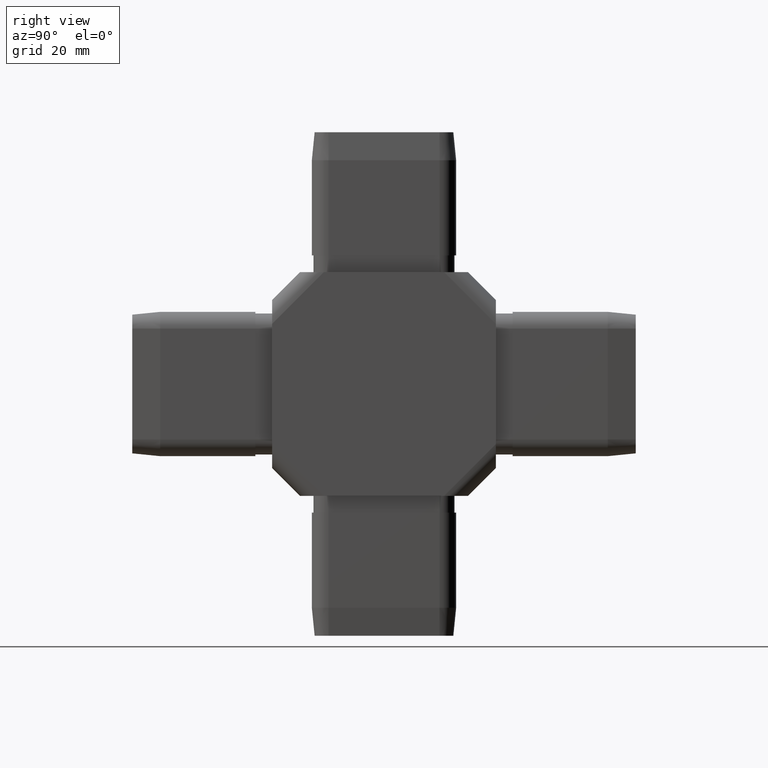
[diagram: clean part render]
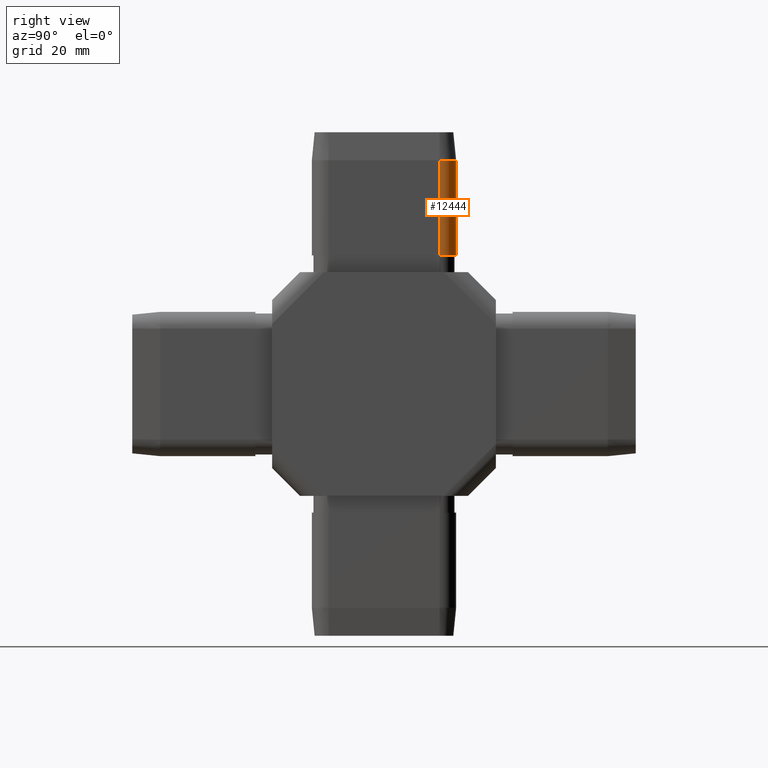
[diagram: same view with one face highlighted and labeled with its STEP entity id]
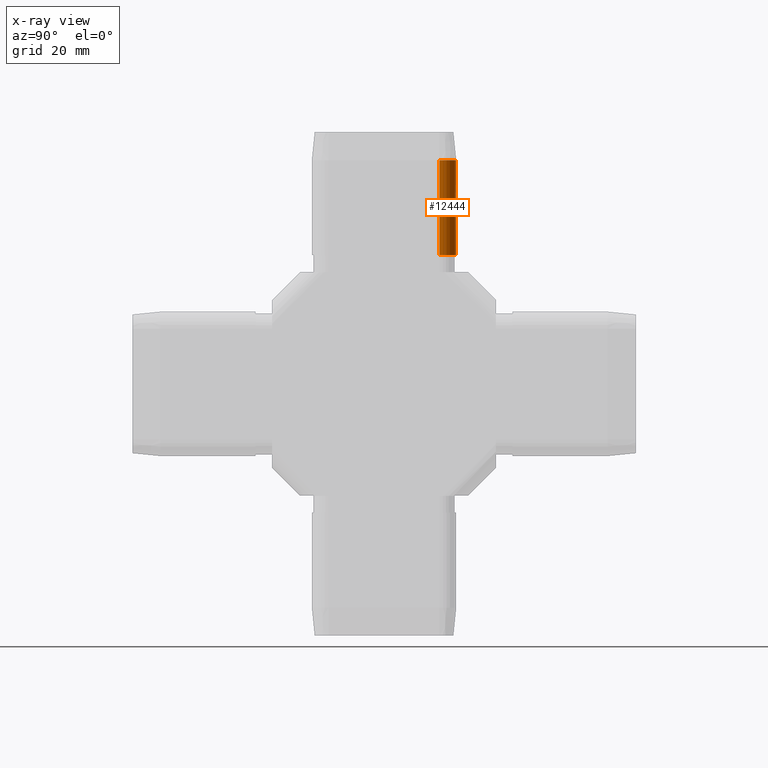
[diagram: x-ray of the same camera — body ghosted, the highlighted face saturated]
A machine part, right view. The second image highlights one B-rep face of the part: STEP entity #12444.
The next image is the same camera in x-ray: the body ghosted, the highlighted face saturated — about 0% of this face is hidden behind the body in this view.
In plain terms, the highlighted cylindrical surface (edge-blend (fillet) strip) has radius 3 mm, axis along (-0, -0, -1).
Its self-contained STEP definition (entity closure, byte-faithful):
#754 = DIRECTION ( 'NONE',  ( -0.0000000000000000000, -0.0000000000000000000, -1.000000000000000000 ) ) ;
#764 = EDGE_LOOP ( 'NONE', ( #3365, #7822, #30448, #21568 ) ) ;
#2270 = EDGE_CURVE ( 'NONE', #28987, #29184, #25474, .T. ) ;
#2455 = CARTESIAN_POINT ( 'NONE',  ( 9.899999999999998600, 12.89999999999999100, 45.00000000000000000 ) ) ;
#3365 = ORIENTED_EDGE ( 'NONE', *, *, #2270, .F. ) ;
#4871 = VECTOR ( 'NONE', #30805, 1000.000000000000000 ) ;
#5307 = DIRECTION ( 'NONE',  ( -0.0000000000000000000, -0.0000000000000000000, -1.000000000000000000 ) ) ;
#6595 = AXIS2_PLACEMENT_3D ( 'NONE', #27272, #11928, #32664 ) ;
#7679 = CARTESIAN_POINT ( 'NONE',  ( 9.899999999999998600, 9.899999999999991500, 40.00000000000000000 ) ) ;
#7822 = ORIENTED_EDGE ( 'NONE', *, *, #9323, .T. ) ;
#8508 = CIRCLE ( 'NONE', #30111, 2.999999999999999100 ) ;
#8683 = EDGE_CURVE ( 'NONE', #18825, #15968, #15748, .T. ) ;
#9323 = EDGE_CURVE ( 'NONE', #28987, #18825, #8508, .T. ) ;
#10313 = CARTESIAN_POINT ( 'NONE',  ( 9.899999999999998600, 12.89999999999999100, 40.00000000000000000 ) ) ;
#11030 = CARTESIAN_POINT ( 'NONE',  ( 9.899999999999998600, 9.899999999999991500, 23.00000000000000000 ) ) ;
#11928 = DIRECTION ( 'NONE',  ( -0.0000000000000000000, -0.0000000000000000000, -1.000000000000000000 ) ) ;
#12444 = ADVANCED_FACE ( 'NONE', ( #24137 ), #17228, .T. ) ;
#12945 = VECTOR ( 'NONE', #22719, 1000.000000000000000 ) ;
#13965 = CIRCLE ( 'NONE', #33240, 2.999999999999999100 ) ;
#15748 = LINE ( 'NONE', #25218, #12945 ) ;
#15968 = VERTEX_POINT ( 'NONE', #16457 ) ;
#16457 = CARTESIAN_POINT ( 'NONE',  ( 12.89999999999999700, 9.899999999999991500, 23.00000000000000000 ) ) ;
#17228 = CYLINDRICAL_SURFACE ( 'NONE', #6595, 2.999999999999999100 ) ;
#18479 = EDGE_CURVE ( 'NONE', #29184, #15968, #13965, .T. ) ;
#18825 = VERTEX_POINT ( 'NONE', #25095 ) ;
#20447 = CARTESIAN_POINT ( 'NONE',  ( 9.899999999999998600, 12.89999999999999100, 23.00000000000000000 ) ) ;
#20456 = DIRECTION ( 'NONE',  ( -1.000000000000000000, 0.0000000000000000000, 0.0000000000000000000 ) ) ;
#21568 = ORIENTED_EDGE ( 'NONE', *, *, #18479, .F. ) ;
#22719 = DIRECTION ( 'NONE',  ( -0.0000000000000000000, -0.0000000000000000000, -1.000000000000000000 ) ) ;
#24137 = FACE_OUTER_BOUND ( 'NONE', #764, .T. ) ;
#25095 = CARTESIAN_POINT ( 'NONE',  ( 12.89999999999999700, 9.899999999999991500, 40.00000000000000000 ) ) ;
#25218 = CARTESIAN_POINT ( 'NONE',  ( 12.89999999999999900, 9.899999999999991500, 45.00000000000000000 ) ) ;
#25474 = LINE ( 'NONE', #2455, #4871 ) ;
#27272 = CARTESIAN_POINT ( 'NONE',  ( 9.899999999999998600, 9.899999999999991500, 45.00000000000000000 ) ) ;
#28987 = VERTEX_POINT ( 'NONE', #10313 ) ;
#29076 = DIRECTION ( 'NONE',  ( -1.000000000000000000, 0.0000000000000000000, 0.0000000000000000000 ) ) ;
#29184 = VERTEX_POINT ( 'NONE', #20447 ) ;
#30111 = AXIS2_PLACEMENT_3D ( 'NONE', #7679, #5307, #20456 ) ;
#30448 = ORIENTED_EDGE ( 'NONE', *, *, #8683, .T. ) ;
#30805 = DIRECTION ( 'NONE',  ( -0.0000000000000000000, -0.0000000000000000000, -1.000000000000000000 ) ) ;
#32664 = DIRECTION ( 'NONE',  ( -1.000000000000000000, 0.0000000000000000000, 0.0000000000000000000 ) ) ;
#33240 = AXIS2_PLACEMENT_3D ( 'NONE', #11030, #754, #29076 ) ;